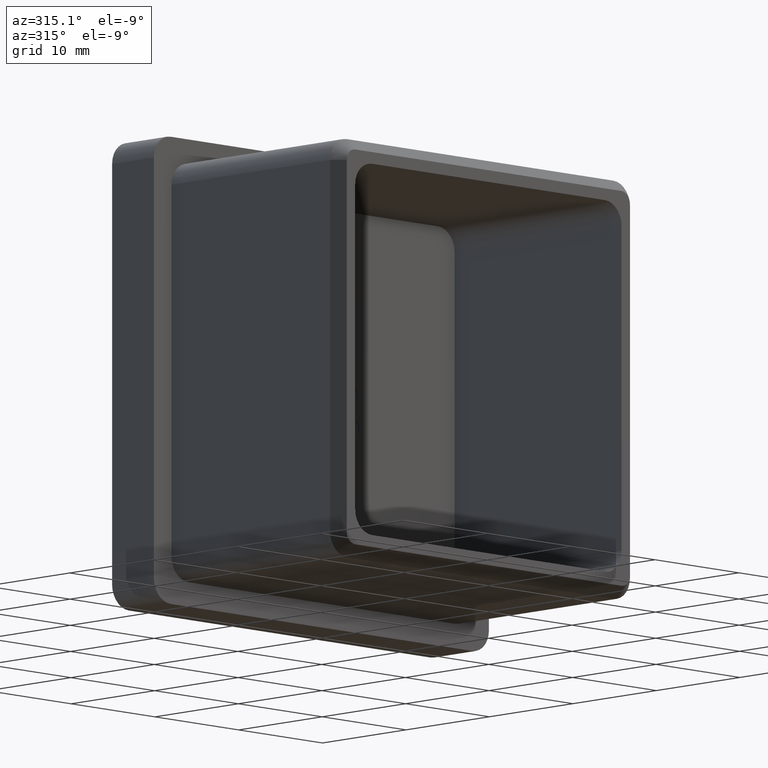
[diagram: clean part render]
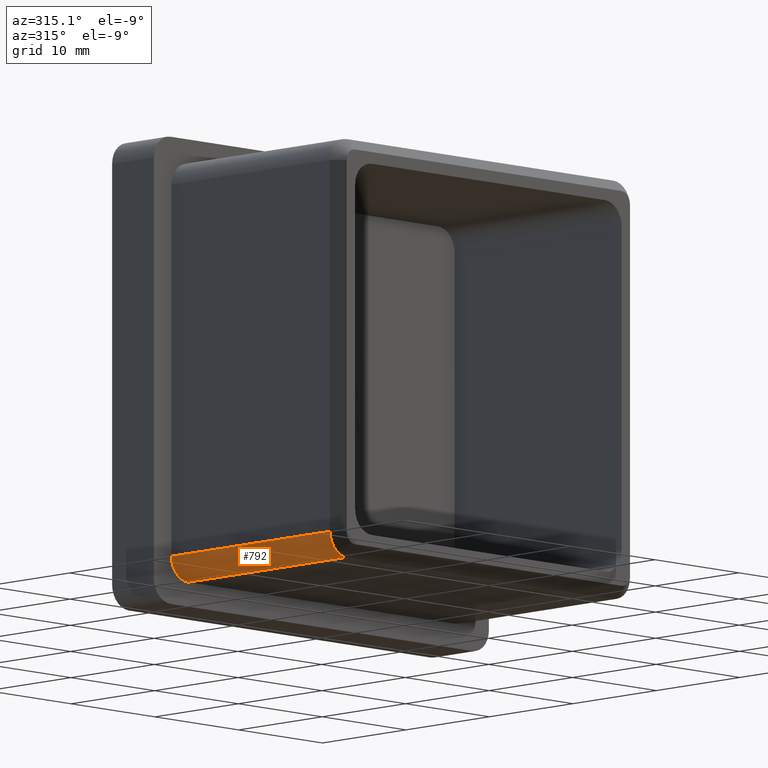
[diagram: same view with one face highlighted and labeled with its STEP entity id]
A machine part, auxiliary view. The second image highlights one B-rep face of the part: STEP entity #792.
In plain terms, the highlighted cylindrical surface (edge-blend (fillet) strip) has radius 2 mm, axis along (0, 1, -0).
Its self-contained STEP definition (entity closure, byte-faithful):
#707 = CARTESIAN_POINT ( 'NONE',  ( -15.89999999999999700, 0.0000000000000000000, -17.89999999999999900 ) ) ;
#792 = ADVANCED_FACE ( 'NONE', ( #9509 ), #12128, .T. ) ;
#915 = DIRECTION ( 'NONE',  ( 0.0000000000000000000, 1.000000000000000000, 0.0000000000000000000 ) ) ;
#1999 = EDGE_CURVE ( 'NONE', #6299, #8749, #6589, .T. ) ;
#2870 = CIRCLE ( 'NONE', #12636, 2.000000000000000000 ) ;
#3251 = VECTOR ( 'NONE', #5594, 1000.000000000000000 ) ;
#3289 = EDGE_CURVE ( 'NONE', #8749, #10256, #2870, .T. ) ;
#3675 = CARTESIAN_POINT ( 'NONE',  ( -17.89999999999999900, -18.99999999999998600, -15.89999999999999700 ) ) ;
#3994 = CARTESIAN_POINT ( 'NONE',  ( -15.89999999999999700, -20.00000000000000000, -15.89999999999999700 ) ) ;
#4353 = DIRECTION ( 'NONE',  ( 0.0000000000000000000, 0.0000000000000000000, -1.000000000000000000 ) ) ;
#4367 = CARTESIAN_POINT ( 'NONE',  ( -17.89999999999999900, -20.00000000000000000, -15.89999999999999700 ) ) ;
#4848 = CARTESIAN_POINT ( 'NONE',  ( -15.89999999999999700, -20.00000000000000000, -17.89999999999999900 ) ) ;
#5149 = VERTEX_POINT ( 'NONE', #3675 ) ;
#5594 = DIRECTION ( 'NONE',  ( -0.0000000000000000000, -1.000000000000000000, -0.0000000000000000000 ) ) ;
#5776 = EDGE_LOOP ( 'NONE', ( #6585, #13719, #6872, #12777 ) ) ;
#6299 = VERTEX_POINT ( 'NONE', #8594 ) ;
#6585 = ORIENTED_EDGE ( 'NONE', *, *, #1999, .F. ) ;
#6589 = LINE ( 'NONE', #4848, #10789 ) ;
#6872 = ORIENTED_EDGE ( 'NONE', *, *, #11409, .F. ) ;
#8426 = CARTESIAN_POINT ( 'NONE',  ( -17.89999999999999900, 0.0000000000000000000, -15.89999999999998400 ) ) ;
#8594 = CARTESIAN_POINT ( 'NONE',  ( -15.89999999999999700, -18.99999999999998600, -17.89999999999999900 ) ) ;
#8749 = VERTEX_POINT ( 'NONE', #707 ) ;
#8838 = DIRECTION ( 'NONE',  ( 0.0000000000000000000, 0.0000000000000000000, 1.000000000000000000 ) ) ;
#8854 = CARTESIAN_POINT ( 'NONE',  ( -15.89999999999999700, -18.99999999999998600, -15.89999999999999700 ) ) ;
#9253 = AXIS2_PLACEMENT_3D ( 'NONE', #3994, #14090, #13995 ) ;
#9366 = CIRCLE ( 'NONE', #10526, 2.000000000000001800 ) ;
#9383 = LINE ( 'NONE', #4367, #3251 ) ;
#9407 = DIRECTION ( 'NONE',  ( 0.0000000000000000000, 1.000000000000000000, -0.0000000000000000000 ) ) ;
#9509 = FACE_OUTER_BOUND ( 'NONE', #5776, .T. ) ;
#10256 = VERTEX_POINT ( 'NONE', #8426 ) ;
#10526 = AXIS2_PLACEMENT_3D ( 'NONE', #8854, #11070, #4353 ) ;
#10789 = VECTOR ( 'NONE', #9407, 1000.000000000000000 ) ;
#11070 = DIRECTION ( 'NONE',  ( 0.0000000000000000000, 1.000000000000000000, 0.0000000000000000000 ) ) ;
#11409 = EDGE_CURVE ( 'NONE', #10256, #5149, #9383, .T. ) ;
#12128 = CYLINDRICAL_SURFACE ( 'NONE', #9253, 2.000000000000000000 ) ;
#12636 = AXIS2_PLACEMENT_3D ( 'NONE', #13162, #915, #8838 ) ;
#12678 = EDGE_CURVE ( 'NONE', #6299, #5149, #9366, .T. ) ;
#12777 = ORIENTED_EDGE ( 'NONE', *, *, #3289, .F. ) ;
#13162 = CARTESIAN_POINT ( 'NONE',  ( -15.89999999999999700, 0.0000000000000000000, -15.89999999999999700 ) ) ;
#13719 = ORIENTED_EDGE ( 'NONE', *, *, #12678, .T. ) ;
#13995 = DIRECTION ( 'NONE',  ( 0.0000000000000000000, 0.0000000000000000000, 1.000000000000000000 ) ) ;
#14090 = DIRECTION ( 'NONE',  ( 0.0000000000000000000, 1.000000000000000000, -0.0000000000000000000 ) ) ;